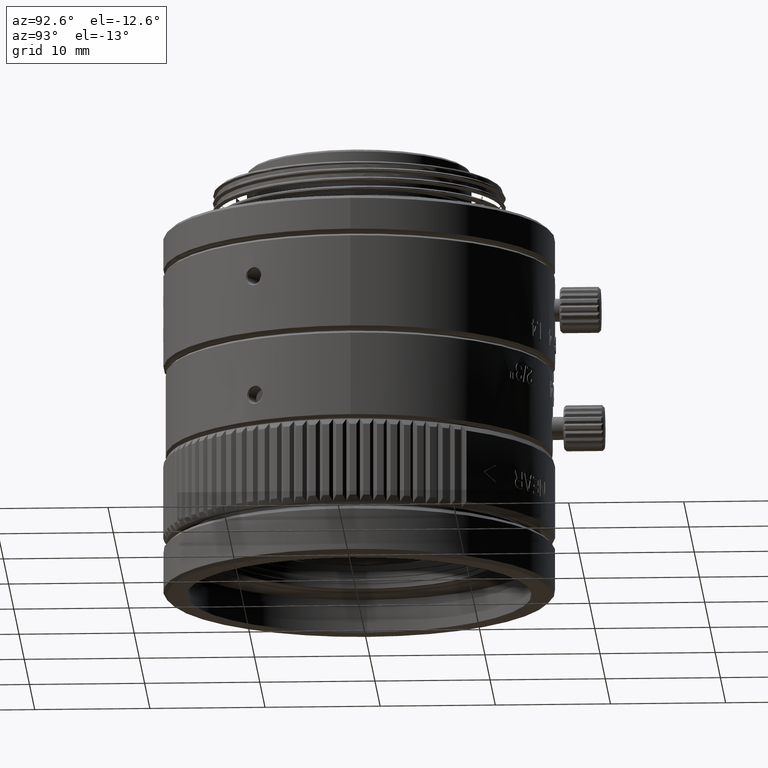
[diagram: clean part render]
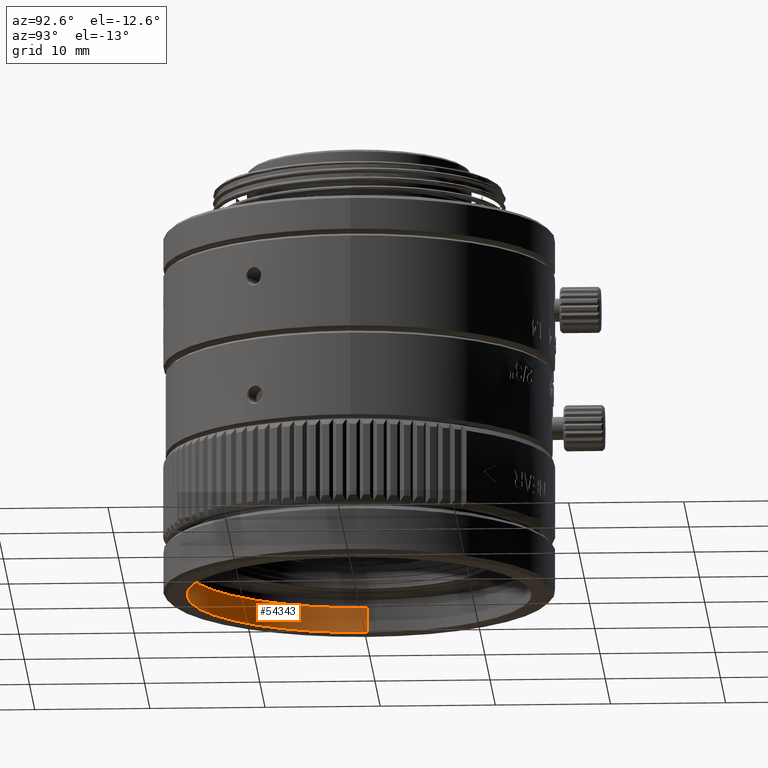
[diagram: same view with one face highlighted and labeled with its STEP entity id]
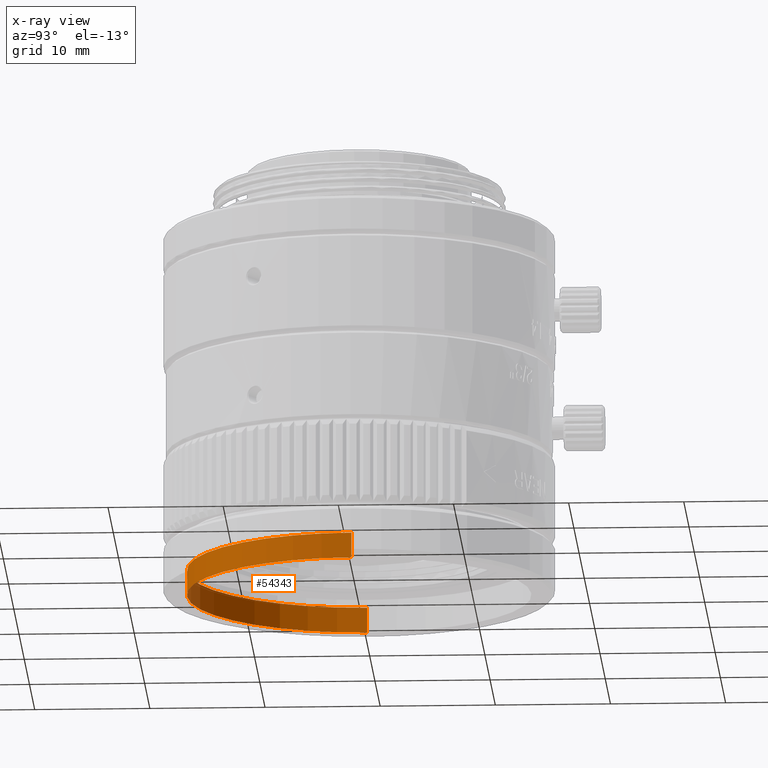
[diagram: x-ray of the same camera — body ghosted, the highlighted face saturated]
A machine part, auxiliary view. The second image highlights one B-rep face of the part: STEP entity #54343.
The next image is the same camera in x-ray: the body ghosted, the highlighted face saturated — about 0% of this face is hidden behind the body in this view.
In plain terms, the highlighted cylindrical surface (partial cylindrical patch) has radius 14.95 mm, axis along (0, 0, -1).
Its self-contained STEP definition (entity closure, byte-faithful):
#4067 = DIRECTION ( 'NONE',  ( -1.000000000000000000, 0.000000000000000000, 0.000000000000000000 ) ) ;
#5633 = CARTESIAN_POINT ( 'NONE',  ( 0.000000000000000000, 0.000000000000000000, -13.47006162799583606 ) ) ;
#7701 = VERTEX_POINT ( 'NONE', #50759 ) ;
#10563 = ORIENTED_EDGE ( 'NONE', *, *, #31826, .F. ) ;
#11650 = DIRECTION ( 'NONE',  ( -1.000000000000000000, 0.000000000000000000, 0.000000000000000000 ) ) ;
#15656 = LINE ( 'NONE', #56016, #27713 ) ;
#16054 = DIRECTION ( 'NONE',  ( -0.000000000000000000, -0.000000000000000000, 1.000000000000000000 ) ) ;
#16975 = DIRECTION ( 'NONE',  ( 0.000000000000000000, 0.000000000000000000, -1.000000000000000000 ) ) ;
#17850 = AXIS2_PLACEMENT_3D ( 'NONE', #23359, #16054, #11650 ) ;
#20386 = VERTEX_POINT ( 'NONE', #20880 ) ;
#20880 = CARTESIAN_POINT ( 'NONE',  ( -14.94999999999999929, 0.000000000000000000, -11.27006162799425759 ) ) ;
#21163 = ORIENTED_EDGE ( 'NONE', *, *, #52999, .F. ) ;
#21291 = LINE ( 'NONE', #44398, #42980 ) ;
#21864 = CARTESIAN_POINT ( 'NONE',  ( 14.94999999999999929, 1.830846964725293305E-15, -11.27006162799425759 ) ) ;
#23359 = CARTESIAN_POINT ( 'NONE',  ( 0.000000000000000000, 0.000000000000000000, -11.27006162799425759 ) ) ;
#25382 = AXIS2_PLACEMENT_3D ( 'NONE', #39239, #16975, #4067 ) ;
#26855 = VERTEX_POINT ( 'NONE', #48368 ) ;
#27713 = VECTOR ( 'NONE', #34089, 1000.000000000000000 ) ;
#29802 = EDGE_LOOP ( 'NONE', ( #44637, #42878, #21163, #10563 ) ) ;
#31826 = EDGE_CURVE ( 'NONE', #20386, #7701, #15656, .T. ) ;
#34089 = DIRECTION ( 'NONE',  ( 0.000000000000000000, 0.000000000000000000, -1.000000000000000000 ) ) ;
#35610 = CIRCLE ( 'NONE', #54237, 14.94999999999999929 ) ;
#36668 = DIRECTION ( 'NONE',  ( -1.000000000000000000, 0.000000000000000000, 0.000000000000000000 ) ) ;
#36951 = DIRECTION ( 'NONE',  ( -0.000000000000000000, -0.000000000000000000, 1.000000000000000000 ) ) ;
#37866 = EDGE_CURVE ( 'NONE', #20386, #48586, #55243, .T. ) ;
#38085 = EDGE_CURVE ( 'NONE', #48586, #26855, #21291, .T. ) ;
#38659 = CYLINDRICAL_SURFACE ( 'NONE', #25382, 14.94999999999999929 ) ;
#39239 = CARTESIAN_POINT ( 'NONE',  ( 0.000000000000000000, 0.000000000000000000, -11.27006162799425759 ) ) ;
#42878 = ORIENTED_EDGE ( 'NONE', *, *, #38085, .T. ) ;
#42980 = VECTOR ( 'NONE', #53743, 1000.000000000000000 ) ;
#44168 = FACE_OUTER_BOUND ( 'NONE', #29802, .T. ) ;
#44398 = CARTESIAN_POINT ( 'NONE',  ( 14.94999999999999929, 1.830846964725293305E-15, -11.27006162799425759 ) ) ;
#44637 = ORIENTED_EDGE ( 'NONE', *, *, #37866, .T. ) ;
#48368 = CARTESIAN_POINT ( 'NONE',  ( 14.94999999999999929, 1.830846964725293305E-15, -13.47006162799583606 ) ) ;
#48586 = VERTEX_POINT ( 'NONE', #21864 ) ;
#50759 = CARTESIAN_POINT ( 'NONE',  ( -14.94999999999999929, 0.000000000000000000, -13.47006162799583606 ) ) ;
#52999 = EDGE_CURVE ( 'NONE', #7701, #26855, #35610, .T. ) ;
#53743 = DIRECTION ( 'NONE',  ( 0.000000000000000000, 0.000000000000000000, -1.000000000000000000 ) ) ;
#54237 = AXIS2_PLACEMENT_3D ( 'NONE', #5633, #36951, #36668 ) ;
#54343 = ADVANCED_FACE ( 'NONE', ( #44168 ), #38659, .F. ) ;
#55243 = CIRCLE ( 'NONE', #17850, 14.94999999999999929 ) ;
#56016 = CARTESIAN_POINT ( 'NONE',  ( -14.94999999999999929, 0.000000000000000000, -11.27006162799425759 ) ) ;